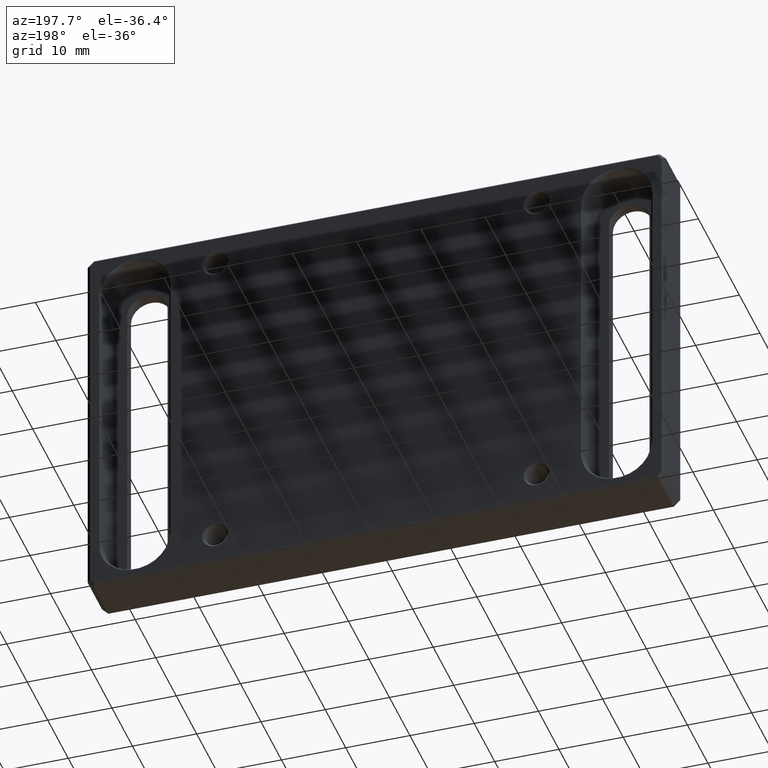
[diagram: clean part render]
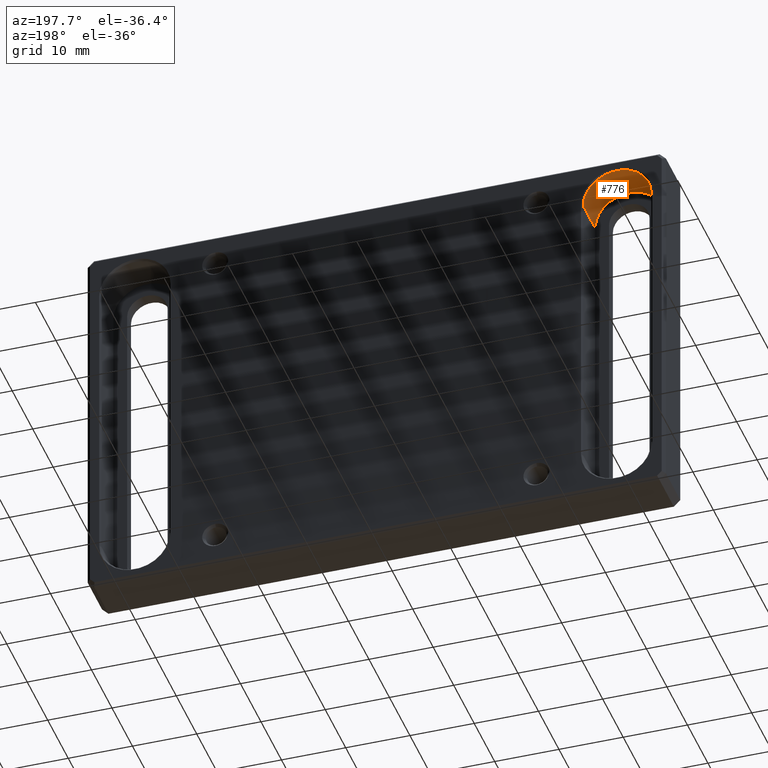
[diagram: same view with one face highlighted and labeled with its STEP entity id]
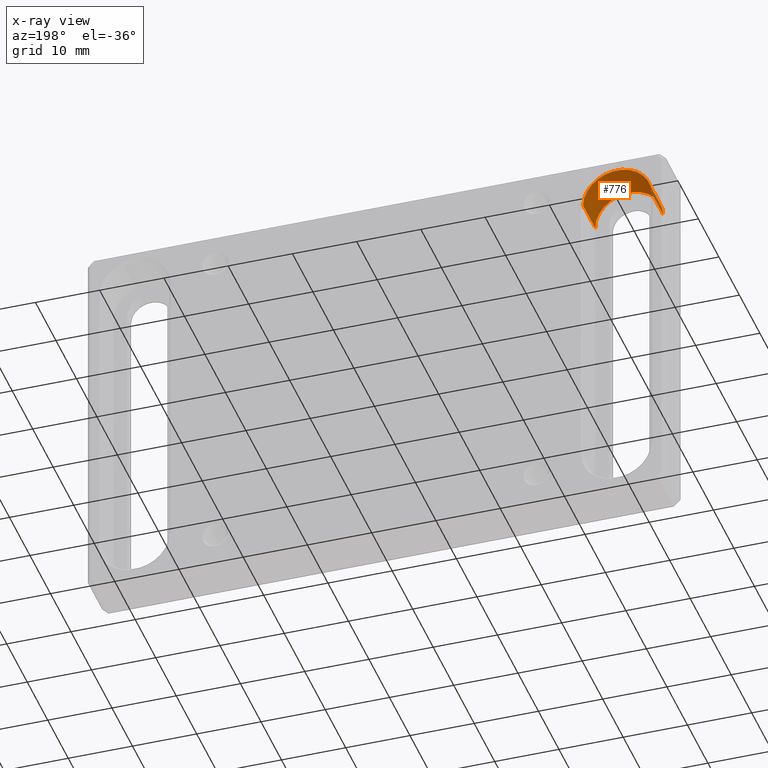
[diagram: x-ray of the same camera — body ghosted, the highlighted face saturated]
A machine part, auxiliary view. The second image highlights one B-rep face of the part: STEP entity #776.
The next image is the same camera in x-ray: the body ghosted, the highlighted face saturated — about 0% of this face is hidden behind the body in this view.
In plain terms, the highlighted cylindrical surface (edge-blend (fillet) strip) has radius 5.3 mm, axis along (-0, 1, -0).
Its self-contained STEP definition (entity closure, byte-faithful):
#34 = VERTEX_POINT ( 'NONE', #932 ) ;
#91 = ORIENTED_EDGE ( 'NONE', *, *, #1471, .T. ) ;
#130 = CARTESIAN_POINT ( 'NONE',  ( -42.79999999999997584, 1.900000000000000577, 23.00000000000000355 ) ) ;
#141 = CARTESIAN_POINT ( 'NONE',  ( -32.19999999999998153, 7.750000000000000000, 23.00000000000000355 ) ) ;
#166 = CARTESIAN_POINT ( 'NONE',  ( -32.19999999999998153, 1.900000000000000577, 23.00000000000000355 ) ) ;
#173 = AXIS2_PLACEMENT_3D ( 'NONE', #1204, #1476, #1593 ) ;
#174 = ORIENTED_EDGE ( 'NONE', *, *, #903, .F. ) ;
#257 = LINE ( 'NONE', #130, #1266 ) ;
#302 = CARTESIAN_POINT ( 'NONE',  ( -37.49999999999997868, 7.750000000000000000, 23.00000000000000355 ) ) ;
#427 = VERTEX_POINT ( 'NONE', #821 ) ;
#475 = VERTEX_POINT ( 'NONE', #141 ) ;
#512 = CIRCLE ( 'NONE', #173, 5.299999999999998934 ) ;
#575 = CARTESIAN_POINT ( 'NONE',  ( -42.79999999999997584, 7.750000000000000000, 23.00000000000000355 ) ) ;
#585 = ORIENTED_EDGE ( 'NONE', *, *, #921, .T. ) ;
#606 = VECTOR ( 'NONE', #703, 1000.000000000000000 ) ;
#626 = VERTEX_POINT ( 'NONE', #575 ) ;
#669 = CIRCLE ( 'NONE', #782, 5.299999999999998934 ) ;
#703 = DIRECTION ( 'NONE',  ( -0.000000000000000000, 1.000000000000000000, -0.000000000000000000 ) ) ;
#743 = DIRECTION ( 'NONE',  ( 0.000000000000000000, 0.000000000000000000, 1.000000000000000000 ) ) ;
#776 = ADVANCED_FACE ( 'NONE', ( #1294 ), #1006, .F. ) ;
#782 = AXIS2_PLACEMENT_3D ( 'NONE', #302, #944, #1481 ) ;
#800 = DIRECTION ( 'NONE',  ( -0.000000000000000000, 1.000000000000000000, -0.000000000000000000 ) ) ;
#821 = CARTESIAN_POINT ( 'NONE',  ( -42.79999999999997584, 1.900000000000000577, 23.00000000000000355 ) ) ;
#903 = EDGE_CURVE ( 'NONE', #427, #34, #512, .T. ) ;
#921 = EDGE_CURVE ( 'NONE', #427, #626, #257, .T. ) ;
#932 = CARTESIAN_POINT ( 'NONE',  ( -32.19999999999998153, 1.900000000000000577, 23.00000000000000355 ) ) ;
#944 = DIRECTION ( 'NONE',  ( 0.000000000000000000, 1.000000000000000000, 0.000000000000000000 ) ) ;
#996 = DIRECTION ( 'NONE',  ( -0.000000000000000000, 1.000000000000000000, -0.000000000000000000 ) ) ;
#1006 = CYLINDRICAL_SURFACE ( 'NONE', #1019, 5.299999999999998934 ) ;
#1019 = AXIS2_PLACEMENT_3D ( 'NONE', #1538, #996, #743 ) ;
#1098 = LINE ( 'NONE', #166, #606 ) ;
#1184 = EDGE_LOOP ( 'NONE', ( #585, #91, #1306, #174 ) ) ;
#1204 = CARTESIAN_POINT ( 'NONE',  ( -37.49999999999997868, 1.900000000000000577, 23.00000000000000355 ) ) ;
#1266 = VECTOR ( 'NONE', #800, 1000.000000000000000 ) ;
#1294 = FACE_OUTER_BOUND ( 'NONE', #1184, .T. ) ;
#1306 = ORIENTED_EDGE ( 'NONE', *, *, #1504, .F. ) ;
#1471 = EDGE_CURVE ( 'NONE', #626, #475, #669, .T. ) ;
#1476 = DIRECTION ( 'NONE',  ( 0.000000000000000000, 1.000000000000000000, 0.000000000000000000 ) ) ;
#1481 = DIRECTION ( 'NONE',  ( 0.000000000000000000, 0.000000000000000000, 1.000000000000000000 ) ) ;
#1504 = EDGE_CURVE ( 'NONE', #34, #475, #1098, .T. ) ;
#1538 = CARTESIAN_POINT ( 'NONE',  ( -37.49999999999997868, 1.900000000000000577, 23.00000000000000355 ) ) ;
#1593 = DIRECTION ( 'NONE',  ( 0.000000000000000000, 0.000000000000000000, 1.000000000000000000 ) ) ;